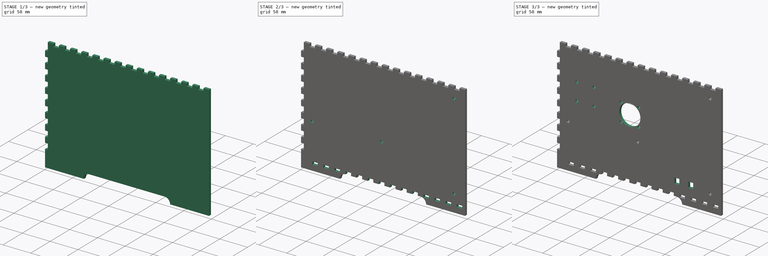
[diagram: build sequence overview — one tinted view per stage of 3, left to right]
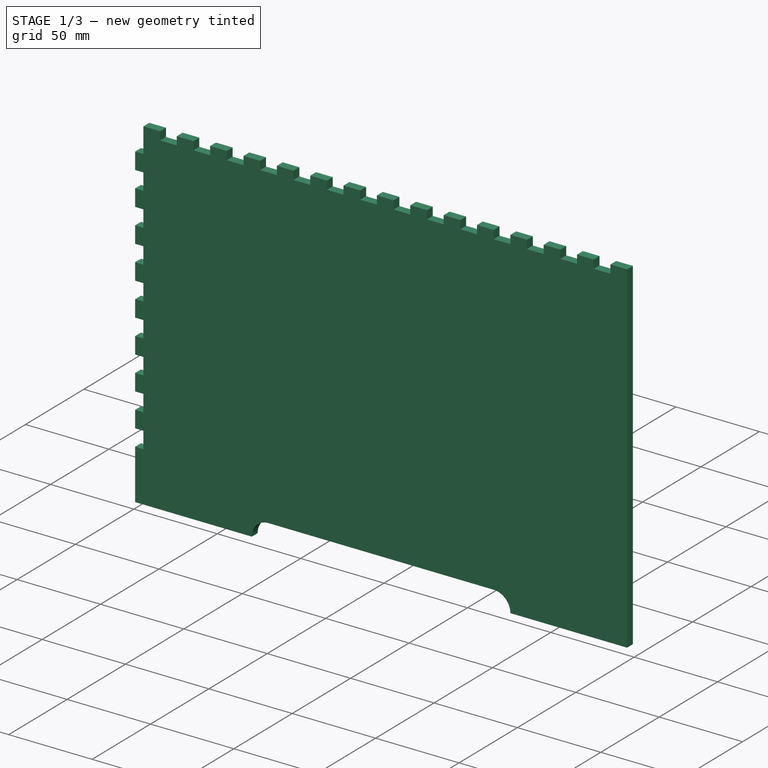
[diagram: stage 1 of 3 — iso view after this stage's code; geometry added in this stage tinted green]
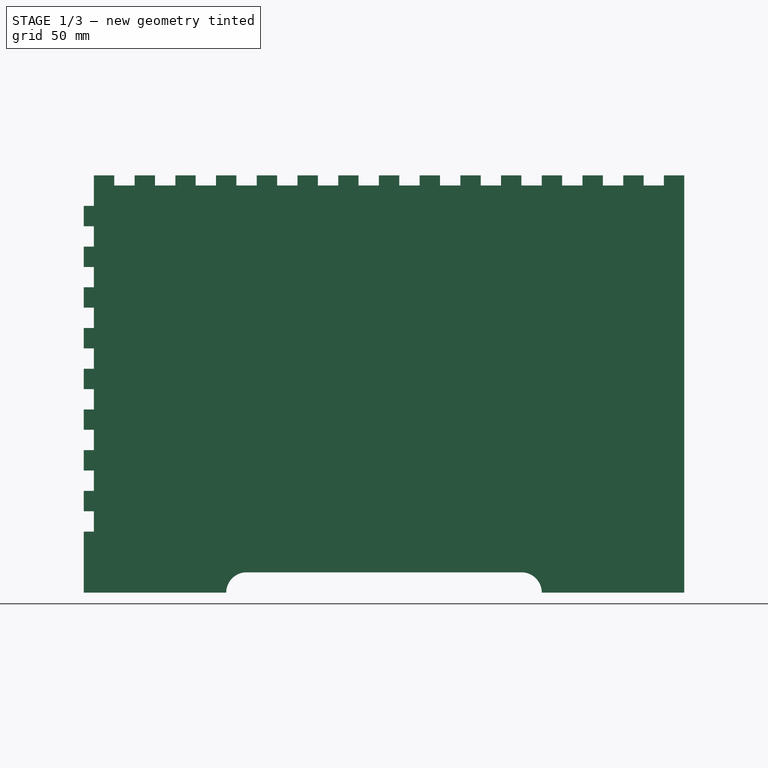
[diagram: stage 1 of 3 — front view after this stage's code; geometry added in this stage tinted green]
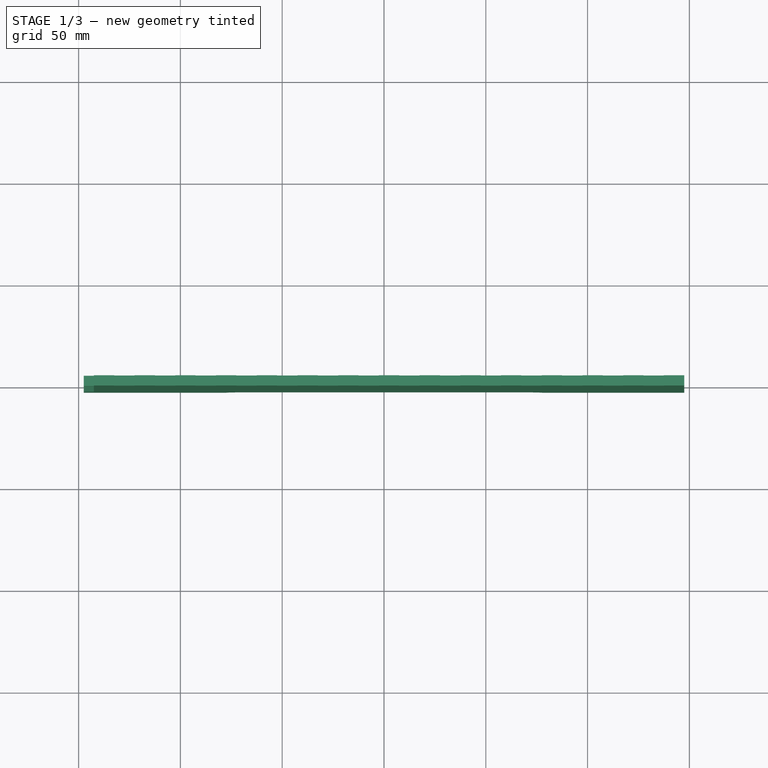
[diagram: stage 1 of 3 — top view after this stage's code; geometry added in this stage tinted green]
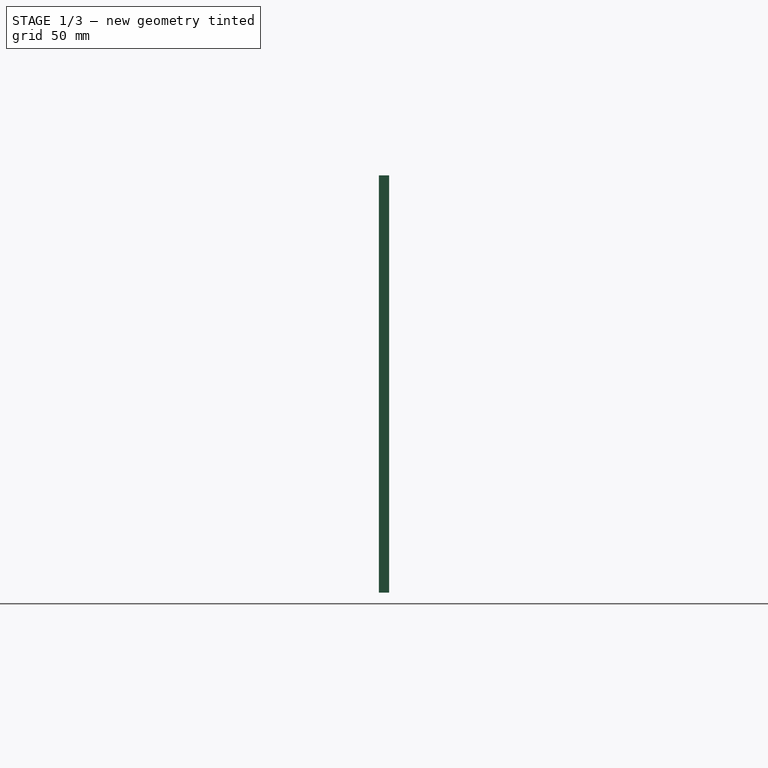
[diagram: stage 1 of 3 — right view after this stage's code; geometry added in this stage tinted green]
FCSTD DOCUMENT  (FreeCAD 0.19R24267 +148 (Git))
Label: STRUCT_Pl_AR
License: All rights reserved
LicenseURL: http://en.wikipedia.org/wiki/All_rights_reserved
objects: Sketcher::SketchObject×8, PartDesign::Pocket×6, PartDesign::Pad×2, PartDesign::Body×1
note: 25 computed .brp shape members not serialized (recipe doc carries the construction recipe); baked Part::Feature solids carry a one-line shape summary decoded from their .brp

FEATURE [Sketcher::SketchObject] Sketch
  FullyConstrained = true
  MapMode = 5
  Placement = pos=(0,0,0) rot=(1,0,0;1.5708rad)
  Support = -> [XZ_Plane]
  sketch-geometry (8):
    g0: LineSegment StartX=-147.5 StartY=-100 StartZ=0 EndX=-77.5 EndY=-100 EndZ=0
    g1: LineSegment StartX=147.5 StartY=-100 StartZ=0 EndX=147.5 EndY=100 EndZ=0
    g2: LineSegment StartX=147.5 StartY=100 StartZ=0 EndX=-147.5 EndY=100 EndZ=0
    g3: LineSegment StartX=-147.5 StartY=100 StartZ=0 EndX=-147.5 EndY=-100 EndZ=0
    g4: ArcOfCircle CenterX=-67.5 CenterY=-100 CenterZ=0 NormalX=0 NormalY=0 NormalZ=1 AngleXU=0 Radius=10 StartAngle=1.5708 EndAngle=3.14159
    g5: ArcOfCircle CenterX=67.5 CenterY=-100 CenterZ=0 NormalX=0 NormalY=0 NormalZ=1 AngleXU=0 Radius=10 StartAngle=-9e-16 EndAngle=1.5708
    g6: LineSegment StartX=-67.5 StartY=-90 StartZ=0 EndX=67.5 EndY=-90 EndZ=0
    g7: LineSegment StartX=77.5 StartY=-100 StartZ=0 EndX=147.5 EndY=-100 EndZ=0
  constraints (22):
    c: Coincident(g7,g1)
    c: Coincident(g1,g2)
    c: Coincident(g2,g3)
    c: Coincident(g3,g0)
    c: Horizontal(g0)
    c: Vertical(g3)
    c: Symmetric(g1,g2,g-2)
    c: Symmetric(g7,g1,g-1)
    c: PointOnObject(g4,g0)
    c: Radius(g4) = 10
    c: Distance(g1) = 200
    c: Distance(g2) = 295
    c: Equal(g5,g4)
    c: Vertical(g5,g5)
    c: Vertical(g4,g4)
    c: Symmetric(g5,g4,g-2)
    c: Coincident(g6,g4)
    c: Coincident(g6,g5)
    c: Coincident(g0,g4)
    c: Coincident(g7,g5)
    c: Tangent(g0,g7)
    c: Distance(g5,g1) = 80
FEATURE [PartDesign::Pad] Pad
  Direction = (1,1,1)
  Length = 5
  Length2 = 100
  Midplane = true
  Placement = pos=(0,0,0) rot=(1,0,0;1.5708rad)
  Profile = -> Sketch
  Refine = true
  Type = 0
FEATURE [Sketcher::SketchObject] Sketch001
  ExternalGeometry = -> [Pad]
  FullyConstrained = true
  MapMode = 5
  Placement = pos=(0,-2.5,1.1e-15) rot=(1,0,0;1.5708rad)
  Support = -> [Pad]
  sketch-geometry (49):
    g0: LineSegment StartX=-142.5 StartY=-60 StartZ=0 EndX=-147.5 EndY=-60 EndZ=0
    g1: LineSegment StartX=-147.5 StartY=-60 StartZ=0 EndX=-147.5 EndY=-70 EndZ=0
    g2: LineSegment StartX=-147.5 StartY=-70 StartZ=0 EndX=-142.5 EndY=-70 EndZ=0
    g3: LineSegment StartX=-142.5 StartY=-70 StartZ=0 EndX=-142.5 EndY=-60 EndZ=0
    g4: LineSegment StartX=-142.5 StartY=-40 StartZ=0 EndX=-147.5 EndY=-40 EndZ=0
    g5: LineSegment StartX=-147.5 StartY=-40 StartZ=0 EndX=-147.5 EndY=-50 EndZ=0
    g6: LineSegment StartX=-147.5 StartY=-50 StartZ=0 EndX=-142.5 EndY=-50 EndZ=0
    g7: LineSegment StartX=-142.5 StartY=-50 StartZ=0 EndX=-142.5 EndY=-40 EndZ=0
    g8: LineSegment StartX=-142.5 StartY=-60 StartZ=0 EndX=-142.5 EndY=-40 EndZ=0
    g9: LineSegment StartX=-142.5 StartY=-20 StartZ=0 EndX=-147.5 EndY=-20 EndZ=0
    g10: LineSegment StartX=-147.5 StartY=-20 StartZ=0 EndX=-147.5 EndY=-30 EndZ=0
    g11: LineSegment StartX=-147.5 StartY=-30 StartZ=0 EndX=-142.5 EndY=-30 EndZ=0
    g12: LineSegment StartX=-142.5 StartY=-30 StartZ=0 EndX=-142.5 EndY=-20 EndZ=0
    g13: LineSegment StartX=-142.5 StartY=-40 StartZ=0 EndX=-142.5 EndY=-20 EndZ=0
    g14: LineSegment StartX=-142.5 StartY=1.42e-14 StartZ=0 EndX=-147.5 EndY=1.42e-14 EndZ=0
    g15: LineSegment StartX=-147.5 StartY=1.42e-14 StartZ=0 EndX=-147.5 EndY=-10 EndZ=0
    g16: LineSegment StartX=-147.5 StartY=-10 StartZ=0 EndX=-142.5 EndY=-10 EndZ=0
    g17: LineSegment StartX=-142.5 StartY=-10 StartZ=0 EndX=-142.5 EndY=1.42e-14 EndZ=0
    g18: LineSegment StartX=-142.5 StartY=-20 StartZ=0 EndX=-142.5 EndY=1.42e-14 EndZ=0
    g19: LineSegment StartX=-142.5 StartY=20 StartZ=0 EndX=-147.5 EndY=20 EndZ=0
    g20: LineSegment StartX=-147.5 StartY=20 StartZ=0 EndX=-147.5 EndY=10 EndZ=0
    g21: LineSegment StartX=-147.5 StartY=10 StartZ=0 EndX=-142.5 EndY=10 EndZ=0
    g22: LineSegment StartX=-142.5 StartY=10 StartZ=0 EndX=-142.5 EndY=20 EndZ=0
    g23: LineSegment StartX=-142.5 StartY=1.42e-14 StartZ=0 EndX=-142.5 EndY=20 EndZ=0
    g24: LineSegment StartX=-142.5 StartY=40 StartZ=0 EndX=-147.5 EndY=40 EndZ=0
    g25: LineSegment StartX=-147.5 StartY=40 StartZ=0 EndX=-147.5 EndY=30 EndZ=0
    g26: LineSegment StartX=-147.5 StartY=30 StartZ=0 EndX=-142.5 EndY=30 EndZ=0
    g27: LineSegment StartX=-142.5 StartY=30 StartZ=0 EndX=-142.5 EndY=40 EndZ=0
    g28: LineSegment StartX=-142.5 StartY=20 StartZ=0 EndX=-142.5 EndY=40 EndZ=0
    g29: LineSegment StartX=-142.5 StartY=60 StartZ=0 EndX=-147.5 EndY=60 EndZ=0
    g30: LineSegment StartX=-147.5 StartY=60 StartZ=0 EndX=-147.5 EndY=50 EndZ=0
    g31: LineSegment StartX=-147.5 StartY=50 StartZ=0 EndX=-142.5 EndY=50 EndZ=0
    g32: LineSegment StartX=-142.5 StartY=50 StartZ=0 EndX=-142.5 EndY=60 EndZ=0
    g33: LineSegment StartX=-142.5 StartY=40 StartZ=0 EndX=-142.5 EndY=60 EndZ=0
    g34: LineSegment StartX=-142.5 StartY=80 StartZ=0 EndX=-147.5 EndY=80 EndZ=0
    g35: LineSegment StartX=-147.5 StartY=80 StartZ=0 EndX=-147.5 EndY=70 EndZ=0
    g36: LineSegment StartX=-147.5 StartY=70 StartZ=0 EndX=-142.5 EndY=70 EndZ=0
    g37: LineSegment StartX=-142.5 StartY=70 StartZ=0 EndX=-142.5 EndY=80 EndZ=0
    g38: LineSegment StartX=-142.5 StartY=60 StartZ=0 EndX=-142.5 EndY=80 EndZ=0
    g39: LineSegment StartX=-142.5 StartY=100 StartZ=0 EndX=-147.5 EndY=100 EndZ=0
    g40: LineSegment StartX=-147.5 StartY=100 StartZ=0 EndX=-147.5 EndY=90 EndZ=0
    g41: LineSegment StartX=-147.5 StartY=90 StartZ=0 EndX=-142.5 EndY=90 EndZ=0
    g42: LineSegment StartX=-142.5 StartY=90 StartZ=0 EndX=-142.5 EndY=100 EndZ=0
    g43: LineSegment StartX=-142.5 StartY=80 StartZ=0 EndX=-142.5 EndY=100 EndZ=0
    g44: LineSegment StartX=-142.5 StartY=120 StartZ=0 EndX=-147.5 EndY=120 EndZ=0
    g45: LineSegment StartX=-147.5 StartY=120 StartZ=0 EndX=-147.5 EndY=110 EndZ=0
    g46: LineSegment StartX=-147.5 StartY=110 StartZ=0 EndX=-142.5 EndY=110 EndZ=0
    g47: LineSegment StartX=-142.5 StartY=110 StartZ=0 EndX=-142.5 EndY=120 EndZ=0
    g48: LineSegment StartX=-142.5 StartY=100 StartZ=0 EndX=-142.5 EndY=120 EndZ=0
  constraints (138):
    c: Coincident(g0,g1)
    c: Coincident(g1,g2)
    c: Coincident(g2,g3)
    c: Coincident(g3,g0)
    c: Horizontal(g0)
    c: Horizontal(g2)
    c: Vertical(g1)
    c: Vertical(g3)
    c: Distance(g2) = 5
    c: Distance(g3) = 10
    c: DistanceY(g-3,g1) = 30
    c: PointOnObject(g0,g-3)
    c: Coincident(g4,g5)
    c: Coincident(g5,g6)
    c: Coincident(g6,g7)
    c: Coincident(g7,g4)
    c: Horizontal(g4)
    c: Horizontal(g6)
    c: Vertical(g5)
    c: Vertical(g7)
    c: Equal(g2,g6) = 5
    c: Equal(g3,g7) = 10
    c: Coincident(g0,g8)
    c: Coincident(g4,g8)
    c: Distance(g8) = 20
    c: Coincident(g9,g10)
    c: Coincident(g10,g11)
    c: Coincident(g11,g12)
    c: Coincident(g12,g9)
    c: Horizontal(g9)
    c: Horizontal(g11)
    c: Vertical(g10)
    c: Vertical(g12)
    c: Equal(g2,g11) = 5
    c: Equal(g3,g12) = 10
    c: Coincident(g4,g13)
    c: Coincident(g9,g13)
    c: Equal(g8,g13)
    c: Parallel(g13,g8)
    c: Coincident(g14,g15)
    c: Coincident(g15,g16)
    c: Coincident(g16,g17)
    c: Coincident(g17,g14)
    c: Horizontal(g14)
    c: Horizontal(g16)
    c: Vertical(g15)
    c: Vertical(g17)
    c: Equal(g2,g16) = 5
    c: Equal(g3,g17) = 10
    c: Coincident(g9,g18)
    c: Coincident(g14,g18)
    c: Equal(g8,g18)
    c: Parallel(g18,g8)
    c: Coincident(g19,g20)
    c: Coincident(g20,g21)
    c: Coincident(g21,g22)
    c: Coincident(g22,g19)
    c: Horizontal(g19)
    c: Horizontal(g21)
    c: Vertical(g20)
    c: Vertical(g22)
    c: Equal(g2,g21) = 5
    c: Equal(g3,g22) = 10
    c: Coincident(g14,g23)
    c: Coincident(g19,g23)
    c: Equal(g8,g23)
    c: Parallel(g23,g8)
    c: Coincident(g24,g25)
    c: Coincident(g25,g26)
    c: Coincident(g26,g27)
    c: Coincident(g27,g24)
    c: Horizontal(g24)
    c: Horizontal(g26)
    c: Vertical(g25)
    c: Vertical(g27)
    c: Equal(g2,g26) = 5
    c: Equal(g3,g27) = 10
    c: Coincident(g19,g28)
    c: Coincident(g24,g28)
    c: Equal(g8,g28)
    c: Parallel(g28,g8)
    c: Coincident(g29,g30)
    c: Coincident(g30,g31)
    c: Coincident(g31,g32)
    c: Coincident(g32,g29)
    c: Horizontal(g29)
    c: Horizontal(g31)
    c: Vertical(g30)
    c: Vertical(g32)
    c: Equal(g2,g31) = 5
    c: Equal(g3,g32) = 10
    c: Coincident(g24,g33)
    c: Coincident(g29,g33)
    c: Equal(g8,g33)
    c: Parallel(g33,g8)
    c: Coincident(g34,g35)
    c: Coincident(g35,g36)
    c: Coincident(g36,g37)
    c: Coincident(g37,g34)
    c: Horizontal(g34)
    c: Horizontal(g36)
    c: Vertical(g35)
    c: Vertical(g37)
    c: Equal(g2,g36) = 5
    c: Equal(g3,g37) = 10
    c: Coincident(g29,g38)
    c: Coincident(g34,g38)
    c: Equal(g8,g38)
    c: Parallel(g38,g8)
    c: Coincident(g39,g40)
    c: Coincident(g40,g41)
    c: Coincident(g41,g42)
    c: Coincident(g42,g39)
    c: Horizontal(g39)
    c: Horizontal(g41)
    c: Vertical(g40)
    c: Vertical(g42)
    c: Equal(g2,g41) = 5
    c: Equal(g3,g42) = 10
    c: Coincident(g34,g43)
    c: Coincident(g39,g43)
    c: Equal(g8,g43)
    c: Parallel(g43,g8)
    c: Coincident(g44,g45)
    c: Coincident(g45,g46)
    c: Coincident(g46,g47)
    c: Coincident(g47,g44)
    c: Horizontal(g44)
    c: Horizontal(g46)
    c: Vertical(g45)
    c: Vertical(g47)
    c: Equal(g2,g46) = 5
    c: Equal(g3,g47) = 10
    c: Coincident(g39,g48)
    c: Coincident(g44,g48)
    c: Equal(g8,g48)
    c: Parallel(g48,g8)
    c: Vertical(g8)
FEATURE [PartDesign::Pocket] Pocket  label="RightCrenel"
  BaseFeature = -> Pad
  Length = 5
  Length2 = 100
  Placement = pos=(0,0,0) rot=(1,0,0;1.5708rad)
  Profile = -> Sketch001
  Refine = true
  Type = 1
FEATURE [Sketcher::SketchObject] Sketch002
  ExternalGeometry = -> [Pocket]
  FullyConstrained = true
  MapMode = 5
  Placement = pos=(0,2.5,-1.1e-15) rot=(-1,0,0;1.5708rad)
  Support = -> [Pocket]
  sketch-geometry (74):
    g0: LineSegment StartX=147.5 StartY=-100 StartZ=0 EndX=137.5 EndY=-100 EndZ=0
    g1: LineSegment StartX=137.5 StartY=-100 StartZ=0 EndX=137.5 EndY=-105 EndZ=0
    g2: LineSegment StartX=137.5 StartY=-105 StartZ=0 EndX=147.5 EndY=-105 EndZ=0
    g3: LineSegment StartX=147.5 StartY=-105 StartZ=0 EndX=147.5 EndY=-100 EndZ=0
    g4: LineSegment StartX=127.5 StartY=-100 StartZ=0 EndX=117.5 EndY=-100 EndZ=0
    g5: LineSegment StartX=117.5 StartY=-100 StartZ=0 EndX=117.5 EndY=-105 EndZ=0
    g6: LineSegment StartX=117.5 StartY=-105 StartZ=0 EndX=127.5 EndY=-105 EndZ=0
    g7: LineSegment StartX=127.5 StartY=-105 StartZ=0 EndX=127.5 EndY=-100 EndZ=0
    g8: LineSegment StartX=147.5 StartY=-100 StartZ=0 EndX=127.5 EndY=-100 EndZ=0
    g9: LineSegment StartX=107.5 StartY=-100 StartZ=0 EndX=97.5 EndY=-100 EndZ=0
    g10: LineSegment StartX=97.5 StartY=-100 StartZ=0 EndX=97.5 EndY=-105 EndZ=0
    g11: LineSegment StartX=97.5 StartY=-105 StartZ=0 EndX=107.5 EndY=-105 EndZ=0
    g12: LineSegment StartX=107.5 StartY=-105 StartZ=0 EndX=107.5 EndY=-100 EndZ=0
    g13: LineSegment StartX=127.5 StartY=-100 StartZ=0 EndX=107.5 EndY=-100 EndZ=0
    g14: LineSegment StartX=87.5 StartY=-100 StartZ=0 EndX=77.5 EndY=-100 EndZ=0
    g15: LineSegment StartX=77.5 StartY=-100 StartZ=0 EndX=77.5 EndY=-105 EndZ=0
    g16: LineSegment StartX=77.5 StartY=-105 StartZ=0 EndX=87.5 EndY=-105 EndZ=0
    g17: LineSegment StartX=87.5 StartY=-105 StartZ=0 EndX=87.5 EndY=-100 EndZ=0
    g18: LineSegment StartX=107.5 StartY=-100 StartZ=0 EndX=87.5 EndY=-100 EndZ=0
    g19: LineSegment StartX=67.5 StartY=-100 StartZ=0 EndX=57.5 EndY=-100 EndZ=0
    g20: LineSegment StartX=57.5 StartY=-100 StartZ=0 EndX=57.5 EndY=-105 EndZ=0
    g21: LineSegment StartX=57.5 StartY=-105 StartZ=0 EndX=67.5 EndY=-105 EndZ=0
    g22: LineSegment StartX=67.5 StartY=-105 StartZ=0 EndX=67.5 EndY=-100 EndZ=0
    g23: LineSegment StartX=87.5 StartY=-100 StartZ=0 EndX=67.5 EndY=-100 EndZ=0
    g24: LineSegment StartX=47.5 StartY=-100 StartZ=0 EndX=37.5 EndY=-100 EndZ=0
    g25: LineSegment StartX=37.5 StartY=-100 StartZ=0 EndX=37.5 EndY=-105 EndZ=0
    g26: LineSegment StartX=37.5 StartY=-105 StartZ=0 EndX=47.5 EndY=-105 EndZ=0
    g27: LineSegment StartX=47.5 StartY=-105 StartZ=0 EndX=47.5 EndY=-100 EndZ=0
    g28: LineSegment StartX=67.5 StartY=-100 StartZ=0 EndX=47.5 EndY=-100 EndZ=0
    g29: LineSegment StartX=27.5 StartY=-100 StartZ=0 EndX=17.5 EndY=-100 EndZ=0
    g30: LineSegment StartX=17.5 StartY=-100 StartZ=0 EndX=17.5 EndY=-105 EndZ=0
    g31: LineSegment StartX=17.5 StartY=-105 StartZ=0 EndX=27.5 EndY=-105 EndZ=0
    g32: LineSegment StartX=27.5 StartY=-105 StartZ=0 EndX=27.5 EndY=-100 EndZ=0
    g33: LineSegment StartX=47.5 StartY=-100 StartZ=0 EndX=27.5 EndY=-100 EndZ=0
    g34: LineSegment StartX=7.5 StartY=-100 StartZ=0 EndX=-2.5 EndY=-100 EndZ=0
    g35: LineSegment StartX=-2.5 StartY=-100 StartZ=0 EndX=-2.5 EndY=-105 EndZ=0
    g36: LineSegment StartX=-2.5 StartY=-105 StartZ=0 EndX=7.5 EndY=-105 EndZ=0
    g37: LineSegment StartX=7.5 StartY=-105 StartZ=0 EndX=7.5 EndY=-100 EndZ=0
    g38: LineSegment StartX=27.5 StartY=-100 StartZ=0 EndX=7.5 EndY=-100 EndZ=0
    g39: LineSegment StartX=-12.5 StartY=-100 StartZ=0 EndX=-22.5 EndY=-100 EndZ=0
    g40: LineSegment StartX=-22.5 StartY=-100 StartZ=0 EndX=-22.5 EndY=-105 EndZ=0
    g41: LineSegment StartX=-22.5 StartY=-105 StartZ=0 EndX=-12.5 EndY=-105 EndZ=0
    g42: LineSegment StartX=-12.5 StartY=-105 StartZ=0 EndX=-12.5 EndY=-100 EndZ=0
    g43: LineSegment StartX=7.5 StartY=-100 StartZ=0 EndX=-12.5 EndY=-100 EndZ=0
    g44: LineSegment StartX=-32.5 StartY=-100 StartZ=0 EndX=-42.5 EndY=-100 EndZ=0
    g45: LineSegment StartX=-42.5 StartY=-100 StartZ=0 EndX=-42.5 EndY=-105 EndZ=0
    g46: LineSegment StartX=-42.5 StartY=-105 StartZ=0 EndX=-32.5 EndY=-105 EndZ=0
    g47: LineSegment StartX=-32.5 StartY=-105 StartZ=0 EndX=-32.5 EndY=-100 EndZ=0
    g48: LineSegment StartX=-12.5 StartY=-100 StartZ=0 EndX=-32.5 EndY=-100 EndZ=0
    g49: LineSegment StartX=-52.5 StartY=-100 StartZ=0 EndX=-62.5 EndY=-100 EndZ=0
    g50: LineSegment StartX=-62.5 StartY=-100 StartZ=0 EndX=-62.5 EndY=-105 EndZ=0
    g51: LineSegment StartX=-62.5 StartY=-105 StartZ=0 EndX=-52.5 EndY=-105 EndZ=0
    g52: LineSegment StartX=-52.5 StartY=-105 StartZ=0 EndX=-52.5 EndY=-100 EndZ=0
    g53: LineSegment StartX=-32.5 StartY=-100 StartZ=0 EndX=-52.5 EndY=-100 EndZ=0
    g54: LineSegment StartX=-72.5 StartY=-100 StartZ=0 EndX=-82.5 EndY=-100 EndZ=0
    g55: LineSegment StartX=-82.5 StartY=-100 StartZ=0 EndX=-82.5 EndY=-105 EndZ=0
    g56: LineSegment StartX=-82.5 StartY=-105 StartZ=0 EndX=-72.5 EndY=-105 EndZ=0
    g57: LineSegment StartX=-72.5 StartY=-105 StartZ=0 EndX=-72.5 EndY=-100 EndZ=0
    g58: LineSegment StartX=-52.5 StartY=-100 StartZ=0 EndX=-72.5 EndY=-100 EndZ=0
    g59: LineSegment StartX=-92.5 StartY=-100 StartZ=0 EndX=-102.5 EndY=-100 EndZ=0
    g60: LineSegment StartX=-102.5 StartY=-100 StartZ=0 EndX=-102.5 EndY=-105 EndZ=0
    g61: LineSegment StartX=-102.5 StartY=-105 StartZ=0 EndX=-92.5 EndY=-105 EndZ=0
    g62: LineSegment StartX=-92.5 StartY=-105 StartZ=0 EndX=-92.5 EndY=-100 EndZ=0
    g63: LineSegment StartX=-72.5 StartY=-100 StartZ=0 EndX=-92.5 EndY=-100 EndZ=0
    g64: LineSegment StartX=-112.5 StartY=-100 StartZ=0 EndX=-122.5 EndY=-100 EndZ=0
    g65: LineSegment StartX=-122.5 StartY=-100 StartZ=0 EndX=-122.5 EndY=-105 EndZ=0
    g66: LineSegment StartX=-122.5 StartY=-105 StartZ=0 EndX=-112.5 EndY=-105 EndZ=0
    g67: LineSegment StartX=-112.5 StartY=-105 StartZ=0 EndX=-112.5 EndY=-100 EndZ=0
    g68: LineSegment StartX=-92.5 StartY=-100 StartZ=0 EndX=-112.5 EndY=-100 EndZ=0
    g69: LineSegment StartX=-132.5 StartY=-100 StartZ=0 EndX=-142.5 EndY=-100 EndZ=0
    g70: LineSegment StartX=-142.5 StartY=-100 StartZ=0 EndX=-142.5 EndY=-105 EndZ=0
    g71: LineSegment StartX=-142.5 StartY=-105 StartZ=0 EndX=-132.5 EndY=-105 EndZ=0
    g72: LineSegment StartX=-132.5 StartY=-105 StartZ=0 EndX=-132.5 EndY=-100 EndZ=0
    g73: LineSegment StartX=-112.5 StartY=-100 StartZ=0 EndX=-132.5 EndY=-100 EndZ=0
  constraints (207):
    c: Coincident(g0,g1)
    c: Coincident(g1,g2)
    c: Coincident(g2,g3)
    c: Coincident(g3,g0)
    c: Horizontal(g0)
    c: Horizontal(g2)
    c: Vertical(g1)
    c: Vertical(g3)
    c: Coincident(g0,g-3)
    c: Distance(g3) = 5
    c: Distance(g0) = 10
    c: Coincident(g4,g5)
    c: Coincident(g5,g6)
    c: Coincident(g6,g7)
    c: Coincident(g7,g4)
    c: Horizontal(g4)
    c: Horizontal(g6)
    c: Vertical(g5)
    c: Vertical(g7)
    c: Equal(g3,g7) = 5
    c: Equal(g0,g4) = 10
    c: Coincident(g0,g8)
    c: Coincident(g4,g8)
    c: Distance(g8) = 20
    c: Coincident(g9,g10)
    c: Coincident(g10,g11)
    c: Coincident(g11,g12)
    c: Coincident(g12,g9)
    c: Horizontal(g9)
    c: Horizontal(g11)
    c: Vertical(g10)
    c: Vertical(g12)
    c: Equal(g3,g12) = 5
    c: Equal(g0,g9) = 10
    c: Coincident(g4,g13)
    c: Coincident(g9,g13)
    c: Equal(g8,g13)
    c: Parallel(g13,g8)
    c: Coincident(g14,g15)
    c: Coincident(g15,g16)
    c: Coincident(g16,g17)
    c: Coincident(g17,g14)
    c: Horizontal(g14)
    c: Horizontal(g16)
    c: Vertical(g15)
    c: Vertical(g17)
    c: Equal(g3,g17) = 5
    c: Equal(g0,g14) = 10
    c: Coincident(g9,g18)
    c: Coincident(g14,g18)
    c: Equal(g8,g18)
    c: Parallel(g18,g8)
    c: Coincident(g19,g20)
    c: Coincident(g20,g21)
    c: Coincident(g21,g22)
    c: Coincident(g22,g19)
    c: Horizontal(g19)
    c: Horizontal(g21)
    c: Vertical(g20)
    c: Vertical(g22)
    c: Equal(g3,g22) = 5
    c: Equal(g0,g19) = 10
    c: Coincident(g14,g23)
    c: Coincident(g19,g23)
    c: Equal(g8,g23)
    c: Parallel(g23,g8)
    c: Coincident(g24,g25)
    c: Coincident(g25,g26)
    c: Coincident(g26,g27)
    c: Coincident(g27,g24)
    c: Horizontal(g24)
    c: Horizontal(g26)
    c: Vertical(g25)
    c: Vertical(g27)
    c: Equal(g3,g27) = 5
    c: Equal(g0,g24) = 10
    c: Coincident(g19,g28)
    c: Coincident(g24,g28)
    c: Equal(g8,g28)
    c: Parallel(g28,g8)
    c: Coincident(g29,g30)
    c: Coincident(g30,g31)
    c: Coincident(g31,g32)
    c: Coincident(g32,g29)
    c: Horizontal(g29)
    c: Horizontal(g31)
    c: Vertical(g30)
    c: Vertical(g32)
    c: Equal(g3,g32) = 5
    c: Equal(g0,g29) = 10
    c: Coincident(g24,g33)
    c: Coincident(g29,g33)
    c: Equal(g8,g33)
    c: Parallel(g33,g8)
    c: Coincident(g34,g35)
    c: Coincident(g35,g36)
    c: Coincident(g36,g37)
    c: Coincident(g37,g34)
    c: Horizontal(g34)
    c: Horizontal(g36)
    c: Vertical(g35)
    c: Vertical(g37)
    c: Equal(g3,g37) = 5
    c: Equal(g0,g34) = 10
    c: Coincident(g29,g38)
    c: Coincident(g34,g38)
    c: Equal(g8,g38)
    c: Parallel(g38,g8)
    c: Coincident(g39,g40)
    c: Coincident(g40,g41)
    c: Coincident(g41,g42)
    c: Coincident(g42,g39)
    c: Horizontal(g39)
    c: Horizontal(g41)
    c: Vertical(g40)
    c: Vertical(g42)
    c: Equal(g3,g42) = 5
    c: Equal(g0,g39) = 10
    c: Coincident(g34,g43)
    c: Coincident(g39,g43)
    c: Equal(g8,g43)
    c: Parallel(g43,g8)
    c: Coincident(g44,g45)
    c: Coincident(g45,g46)
    c: Coincident(g46,g47)
    c: Coincident(g47,g44)
    c: Horizontal(g44)
    c: Horizontal(g46)
    c: Vertical(g45)
    c: Vertical(g47)
    c: Equal(g3,g47) = 5
    c: Equal(g0,g44) = 10
    c: Coincident(g39,g48)
    c: Coincident(g44,g48)
    c: Equal(g8,g48)
    c: Parallel(g48,g8)
    c: Coincident(g49,g50)
    c: Coincident(g50,g51)
    c: Coincident(g51,g52)
    c: Coincident(g52,g49)
    c: Horizontal(g49)
    c: Horizontal(g51)
    c: Vertical(g50)
    c: Vertical(g52)
    c: Equal(g3,g52) = 5
    c: Equal(g0,g49) = 10
    c: Coincident(g44,g53)
    c: Coincident(g49,g53)
    c: Equal(g8,g53)
    c: Parallel(g53,g8)
    c: Coincident(g54,g55)
    c: Coincident(g55,g56)
    c: Coincident(g56,g57)
    c: Coincident(g57,g54)
    c: Horizontal(g54)
    c: Horizontal(g56)
    c: Vertical(g55)
    c: Vertical(g57)
    c: Equal(g3,g57) = 5
    c: Equal(g0,g54) = 10
    c: Coincident(g49,g58)
    c: Coincident(g54,g58)
    c: Equal(g8,g58)
    c: Parallel(g58,g8)
    c: Coincident(g59,g60)
    c: Coincident(g60,g61)
    c: Coincident(g61,g62)
    c: Coincident(g62,g59)
    c: Horizontal(g59)
    c: Horizontal(g61)
    c: Vertical(g60)
    c: Vertical(g62)
    c: Equal(g3,g62) = 5
    c: Equal(g0,g59) = 10
    c: Coincident(g54,g63)
    c: Coincident(g59,g63)
    c: Equal(g8,g63)
    c: Parallel(g63,g8)
    c: Coincident(g64,g65)
    c: Coincident(g65,g66)
    c: Coincident(g66,g67)
    c: Coincident(g67,g64)
    c: Horizontal(g64)
    c: Horizontal(g66)
    c: Vertical(g65)
    c: Vertical(g67)
    c: Equal(g3,g67) = 5
    c: Equal(g0,g64) = 10
    c: Coincident(g59,g68)
    c: Coincident(g64,g68)
    c: Equal(g8,g68)
    c: Parallel(g68,g8)
    c: Coincident(g69,g70)
    c: Coincident(g70,g71)
    c: Coincident(g71,g72)
    c: Coincident(g72,g69)
    c: Horizontal(g69)
    c: Horizontal(g71)
    c: Vertical(g70)
    c: Vertical(g72)
    c: Equal(g3,g72) = 5
    c: Equal(g0,g69) = 10
    c: Coincident(g64,g73)
    c: Coincident(g69,g73)
    c: Equal(g8,g73)
    c: Parallel(g73,g8)
    c: Horizontal(g8)
FEATURE [PartDesign::Pad] Pad001  label="UpperCrenel"
  BaseFeature = -> Pocket
  Direction = (1,1,1)
  Length = 10
  Length2 = 100
  Placement = pos=(0,0,0) rot=(1,0,0;1.5708rad)
  Profile = -> Sketch002
  Refine = true
  Type = 3
  UpToFace = -> Pocket [Face5]
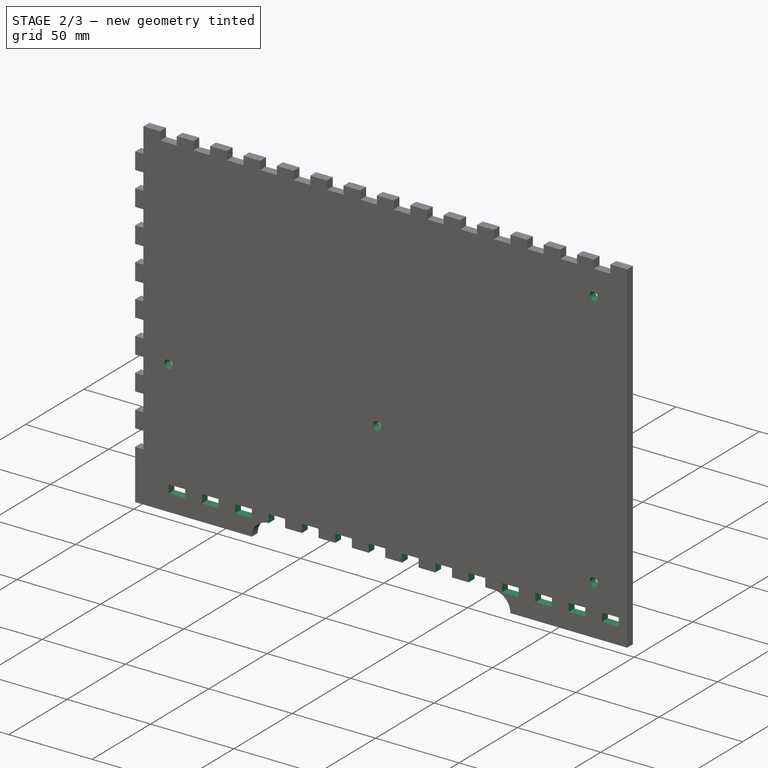
[diagram: stage 2 of 3 — iso view after this stage's code; geometry added in this stage tinted green]
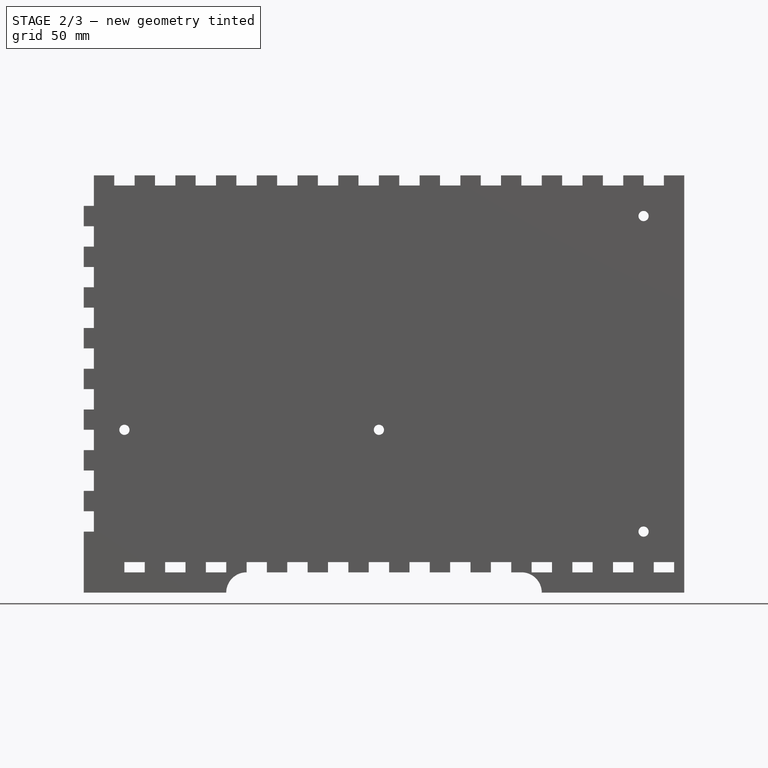
[diagram: stage 2 of 3 — front view after this stage's code; geometry added in this stage tinted green]
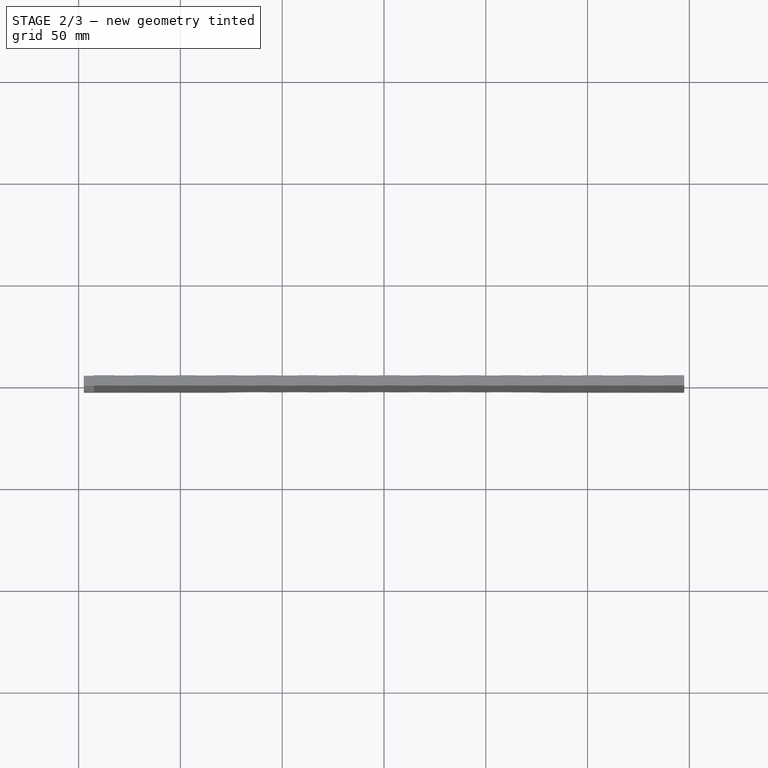
[diagram: stage 2 of 3 — top view after this stage's code; geometry added in this stage tinted green]
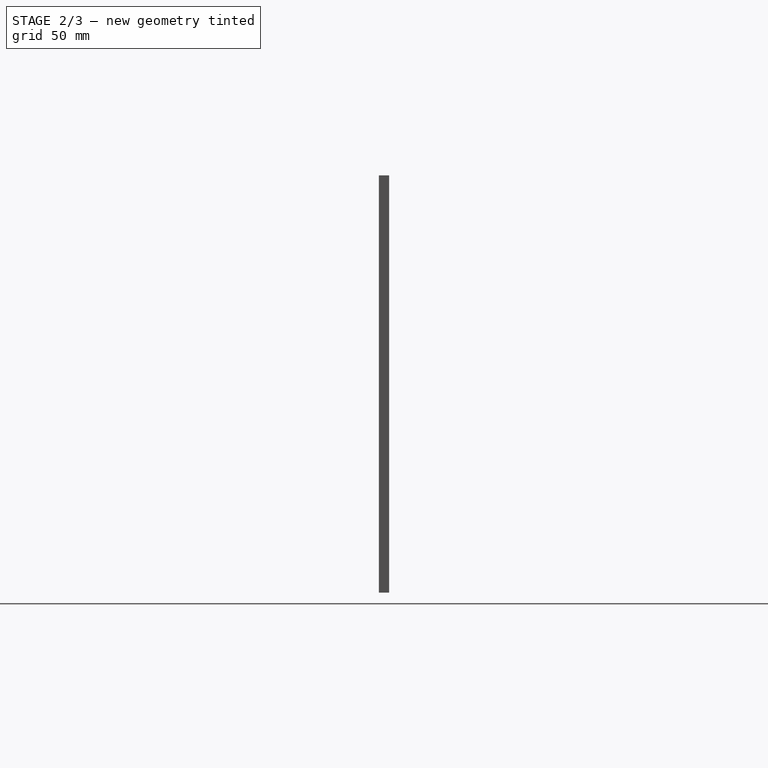
[diagram: stage 2 of 3 — right view after this stage's code; geometry added in this stage tinted green]
FEATURE [Sketcher::SketchObject] Sketch003
  ExternalGeometry = -> [Pad001]
  FullyConstrained = true
  MapMode = 5
  Placement = pos=(0,2.5,-3.9e-15) rot=(-1,0,0;1.5708rad)
  Support = -> [Pad001]
  sketch-geometry (69):
    g0: LineSegment StartX=-127.5 StartY=85 StartZ=0 EndX=-117.5 EndY=85 EndZ=0
    g1: LineSegment StartX=-117.5 StartY=85 StartZ=0 EndX=-117.5 EndY=90 EndZ=0
    g2: LineSegment StartX=-117.5 StartY=90 StartZ=0 EndX=-127.5 EndY=90 EndZ=0
    g3: LineSegment StartX=-127.5 StartY=90 StartZ=0 EndX=-127.5 EndY=85 EndZ=0
    g4: LineSegment StartX=-107.5 StartY=85 StartZ=0 EndX=-97.5 EndY=85 EndZ=0
    g5: LineSegment StartX=-97.5 StartY=85 StartZ=0 EndX=-97.5 EndY=90 EndZ=0
    g6: LineSegment StartX=-97.5 StartY=90 StartZ=0 EndX=-107.5 EndY=90 EndZ=0
    g7: LineSegment StartX=-107.5 StartY=90 StartZ=0 EndX=-107.5 EndY=85 EndZ=0
    g8: LineSegment StartX=-127.5 StartY=85 StartZ=0 EndX=-107.5 EndY=85 EndZ=0
    g9: LineSegment StartX=-87.5 StartY=85 StartZ=0 EndX=-77.5 EndY=85 EndZ=0
    g10: LineSegment StartX=-77.5 StartY=85 StartZ=0 EndX=-77.5 EndY=90 EndZ=0
    g11: LineSegment StartX=-77.5 StartY=90 StartZ=0 EndX=-87.5 EndY=90 EndZ=0
    g12: LineSegment StartX=-87.5 StartY=90 StartZ=0 EndX=-87.5 EndY=85 EndZ=0
    g13: LineSegment StartX=-107.5 StartY=85 StartZ=0 EndX=-87.5 EndY=85 EndZ=0
    g14: LineSegment StartX=-67.5 StartY=85 StartZ=0 EndX=-57.5 EndY=85 EndZ=0
    g15: LineSegment StartX=-57.5 StartY=85 StartZ=0 EndX=-57.5 EndY=90 EndZ=0
    g16: LineSegment StartX=-57.5 StartY=90 StartZ=0 EndX=-67.5 EndY=90 EndZ=0
    g17: LineSegment StartX=-67.5 StartY=90 StartZ=0 EndX=-67.5 EndY=85 EndZ=0
    g18: LineSegment StartX=-87.5 StartY=85 StartZ=0 EndX=-67.5 EndY=85 EndZ=0
    g19: LineSegment StartX=-47.5 StartY=85 StartZ=0 EndX=-37.5 EndY=85 EndZ=0
    g20: LineSegment StartX=-37.5 StartY=85 StartZ=0 EndX=-37.5 EndY=90 EndZ=0
    g21: LineSegment StartX=-37.5 StartY=90 StartZ=0 EndX=-47.5 EndY=90 EndZ=0
    g22: LineSegment StartX=-47.5 StartY=90 StartZ=0 EndX=-47.5 EndY=85 EndZ=0
    g23: LineSegment StartX=-67.5 StartY=85 StartZ=0 EndX=-47.5 EndY=85 EndZ=0
    g24: LineSegment StartX=-27.5 StartY=85 StartZ=0 EndX=-17.5 EndY=85 EndZ=0
    g25: LineSegment StartX=-17.5 StartY=85 StartZ=0 EndX=-17.5 EndY=90 EndZ=0
    g26: LineSegment StartX=-17.5 StartY=90 StartZ=0 EndX=-27.5 EndY=90 EndZ=0
    g27: LineSegment StartX=-27.5 StartY=90 StartZ=0 EndX=-27.5 EndY=85 EndZ=0
    g28: LineSegment StartX=-47.5 StartY=85 StartZ=0 EndX=-27.5 EndY=85 EndZ=0
    g29: LineSegment StartX=-7.5 StartY=85 StartZ=0 EndX=2.5 EndY=85 EndZ=0
    g30: LineSegment StartX=2.5 StartY=85 StartZ=0 EndX=2.5 EndY=90 EndZ=0
    g31: LineSegment StartX=2.5 StartY=90 StartZ=0 EndX=-7.5 EndY=90 EndZ=0
    g32: LineSegment StartX=-7.5 StartY=90 StartZ=0 EndX=-7.5 EndY=85 EndZ=0
    g33: LineSegment StartX=-27.5 StartY=85 StartZ=0 EndX=-7.5 EndY=85 EndZ=0
    g34: LineSegment StartX=12.5 StartY=85 StartZ=0 EndX=22.5 EndY=85 EndZ=0
    g35: LineSegment StartX=22.5 StartY=85 StartZ=0 EndX=22.5 EndY=90 EndZ=0
    g36: LineSegment StartX=22.5 StartY=90 StartZ=0 EndX=12.5 EndY=90 EndZ=0
    g37: LineSegment StartX=12.5 StartY=90 StartZ=0 EndX=12.5 EndY=85 EndZ=0
    g38: LineSegment StartX=-7.5 StartY=85 StartZ=0 EndX=12.5 EndY=85 EndZ=0
    g39: LineSegment StartX=32.5 StartY=85 StartZ=0 EndX=42.5 EndY=85 EndZ=0
    g40: LineSegment StartX=42.5 StartY=85 StartZ=0 EndX=42.5 EndY=90 EndZ=0
    g41: LineSegment StartX=42.5 StartY=90 StartZ=0 EndX=32.5 EndY=90 EndZ=0
    g42: LineSegment StartX=32.5 StartY=90 StartZ=0 EndX=32.5 EndY=85 EndZ=0
    g43: LineSegment StartX=12.5 StartY=85 StartZ=0 EndX=32.5 EndY=85 EndZ=0
    g44: LineSegment StartX=52.5 StartY=85 StartZ=0 EndX=62.5 EndY=85 EndZ=0
    g45: LineSegment StartX=62.5 StartY=85 StartZ=0 EndX=62.5 EndY=90 EndZ=0
    g46: LineSegment StartX=62.5 StartY=90 StartZ=0 EndX=52.5 EndY=90 EndZ=0
    g47: LineSegment StartX=52.5 StartY=90 StartZ=0 EndX=52.5 EndY=85 EndZ=0
    g48: LineSegment StartX=32.5 StartY=85 StartZ=0 EndX=52.5 EndY=85 EndZ=0
    g49: LineSegment StartX=72.5 StartY=85 StartZ=0 EndX=82.5 EndY=85 EndZ=0
    g50: LineSegment StartX=82.5 StartY=85 StartZ=0 EndX=82.5 EndY=90 EndZ=0
    g51: LineSegment StartX=82.5 StartY=90 StartZ=0 EndX=72.5 EndY=90 EndZ=0
    g52: LineSegment StartX=72.5 StartY=90 StartZ=0 EndX=72.5 EndY=85 EndZ=0
    g53: LineSegment StartX=52.5 StartY=85 StartZ=0 EndX=72.5 EndY=85 EndZ=0
    g54: LineSegment StartX=92.5 StartY=85 StartZ=0 EndX=102.5 EndY=85 EndZ=0
    g55: LineSegment StartX=102.5 StartY=85 StartZ=0 EndX=102.5 EndY=90 EndZ=0
    g56: LineSegment StartX=102.5 StartY=90 StartZ=0 EndX=92.5 EndY=90 EndZ=0
    g57: LineSegment StartX=92.5 StartY=90 StartZ=0 EndX=92.5 EndY=85 EndZ=0
    g58: LineSegment StartX=72.5 StartY=85 StartZ=0 EndX=92.5 EndY=85 EndZ=0
    g59: LineSegment StartX=112.5 StartY=85 StartZ=0 EndX=122.5 EndY=85 EndZ=0
    g60: LineSegment StartX=122.5 StartY=85 StartZ=0 EndX=122.5 EndY=90 EndZ=0
    g61: LineSegment StartX=122.5 StartY=90 StartZ=0 EndX=112.5 EndY=90 EndZ=0
    g62: LineSegment StartX=112.5 StartY=90 StartZ=0 EndX=112.5 EndY=85 EndZ=0
    g63: LineSegment StartX=92.5 StartY=85 StartZ=0 EndX=112.5 EndY=85 EndZ=0
    g64: LineSegment StartX=132.5 StartY=85 StartZ=0 EndX=142.5 EndY=85 EndZ=0
    g65: LineSegment StartX=142.5 StartY=85 StartZ=0 EndX=142.5 EndY=90 EndZ=0
    g66: LineSegment StartX=142.5 StartY=90 StartZ=0 EndX=132.5 EndY=90 EndZ=0
    g67: LineSegment StartX=132.5 StartY=90 StartZ=0 EndX=132.5 EndY=85 EndZ=0
    g68: LineSegment StartX=112.5 StartY=85 StartZ=0 EndX=132.5 EndY=85 EndZ=0
  constraints (194):
    c: Coincident(g0,g1)
    c: Coincident(g1,g2)
    c: Coincident(g2,g3)
    c: Coincident(g3,g0)
    c: Horizontal(g0)
    c: Horizontal(g2)
    c: Vertical(g1)
    c: Vertical(g3)
    c: Distance(g2) = 10
    c: Distance(g3) = 5
    c: DistanceX(g-3,g2) = 20
    c: DistanceY(g2,g-3) = 10
    c: Coincident(g4,g5)
    c: Coincident(g5,g6)
    c: Coincident(g6,g7)
    c: Coincident(g7,g4)
    c: Horizontal(g4)
    c: Horizontal(g6)
    c: Vertical(g5)
    c: Vertical(g7)
    c: Equal(g2,g6) = 10
    c: Equal(g3,g7) = 5
    c: Coincident(g0,g8)
    c: Coincident(g4,g8)
    c: Distance(g8) = 20
    c: Coincident(g9,g10)
    c: Coincident(g10,g11)
    c: Coincident(g11,g12)
    c: Coincident(g12,g9)
    c: Horizontal(g9)
    c: Horizontal(g11)
    c: Vertical(g10)
    c: Vertical(g12)
    c: Equal(g2,g11) = 10
    c: Equal(g3,g12) = 5
    c: Coincident(g4,g13)
    c: Coincident(g9,g13)
    c: Equal(g8,g13)
    c: Parallel(g13,g8)
    c: Coincident(g14,g15)
    c: Coincident(g15,g16)
    c: Coincident(g16,g17)
    c: Coincident(g17,g14)
    c: Horizontal(g14)
    c: Horizontal(g16)
    c: Vertical(g15)
    c: Vertical(g17)
    c: Equal(g2,g16) = 10
    c: Equal(g3,g17) = 5
    c: Coincident(g9,g18)
    c: Coincident(g14,g18)
    c: Equal(g8,g18)
    c: Parallel(g18,g8)
    c: Coincident(g19,g20)
    c: Coincident(g20,g21)
    c: Coincident(g21,g22)
    c: Coincident(g22,g19)
    c: Horizontal(g19)
    c: Horizontal(g21)
    c: Vertical(g20)
    c: Vertical(g22)
    c: Equal(g2,g21) = 10
    c: Equal(g3,g22) = 5
    c: Coincident(g14,g23)
    c: Coincident(g19,g23)
    c: Equal(g8,g23)
    c: Parallel(g23,g8)
    c: Coincident(g24,g25)
    c: Coincident(g25,g26)
    c: Coincident(g26,g27)
    c: Coincident(g27,g24)
    c: Horizontal(g24)
    c: Horizontal(g26)
    c: Vertical(g25)
    c: Vertical(g27)
    c: Equal(g2,g26) = 10
    c: Equal(g3,g27) = 5
    c: Coincident(g19,g28)
    c: Coincident(g24,g28)
    c: Equal(g8,g28)
    c: Parallel(g28,g8)
    c: Coincident(g29,g30)
    c: Coincident(g30,g31)
    c: Coincident(g31,g32)
    c: Coincident(g32,g29)
    c: Horizontal(g29)
    c: Horizontal(g31)
    c: Vertical(g30)
    c: Vertical(g32)
    c: Equal(g2,g31) = 10
    c: Equal(g3,g32) = 5
    c: Coincident(g24,g33)
    c: Coincident(g29,g33)
    c: Equal(g8,g33)
    c: Parallel(g33,g8)
    c: Coincident(g34,g35)
    c: Coincident(g35,g36)
    c: Coincident(g36,g37)
    c: Coincident(g37,g34)
    c: Horizontal(g34)
    c: Horizontal(g36)
    c: Vertical(g35)
    c: Vertical(g37)
    c: Equal(g2,g36) = 10
    c: Equal(g3,g37) = 5
    c: Coincident(g29,g38)
    c: Coincident(g34,g38)
    c: Equal(g8,g38)
    c: Parallel(g38,g8)
    c: Coincident(g39,g40)
    c: Coincident(g40,g41)
    c: Coincident(g41,g42)
    c: Coincident(g42,g39)
    c: Horizontal(g39)
    c: Horizontal(g41)
    c: Vertical(g40)
    c: Vertical(g42)
    c: Equal(g2,g41) = 10
    c: Equal(g3,g42) = 5
    c: Coincident(g34,g43)
    c: Coincident(g39,g43)
    c: Equal(g8,g43)
    c: Parallel(g43,g8)
    c: Coincident(g44,g45)
    c: Coincident(g45,g46)
    c: Coincident(g46,g47)
    c: Coincident(g47,g44)
    c: Horizontal(g44)
    c: Horizontal(g46)
    c: Vertical(g45)
    c: Vertical(g47)
    c: Equal(g2,g46) = 10
    c: Equal(g3,g47) = 5
    c: Coincident(g39,g48)
    c: Coincident(g44,g48)
    c: Equal(g8,g48)
    c: Parallel(g48,g8)
    c: Coincident(g49,g50)
    c: Coincident(g50,g51)
    c: Coincident(g51,g52)
    c: Coincident(g52,g49)
    c: Horizontal(g49)
    c: Horizontal(g51)
    c: Vertical(g50)
    c: Vertical(g52)
    c: Equal(g2,g51) = 10
    c: Equal(g3,g52) = 5
    c: Coincident(g44,g53)
    c: Coincident(g49,g53)
    c: Equal(g8,g53)
    c: Parallel(g53,g8)
    c: Coincident(g54,g55)
    c: Coincident(g55,g56)
    c: Coincident(g56,g57)
    c: Coincident(g57,g54)
    c: Horizontal(g54)
    c: Horizontal(g56)
    c: Vertical(g55)
    c: Vertical(g57)
    c: Equal(g2,g56) = 10
    c: Equal(g3,g57) = 5
    c: Coincident(g49,g58)
    c: Coincident(g54,g58)
    c: Equal(g8,g58)
    c: Parallel(g58,g8)
    c: Coincident(g59,g60)
    c: Coincident(g60,g61)
    c: Coincident(g61,g62)
    c: Coincident(g62,g59)
    c: Horizontal(g59)
    c: Horizontal(g61)
    c: Vertical(g60)
    c: Vertical(g62)
    c: Equal(g2,g61) = 10
    c: Equal(g3,g62) = 5
    c: Coincident(g54,g63)
    c: Coincident(g59,g63)
    c: Equal(g8,g63)
    c: Parallel(g63,g8)
    c: Coincident(g64,g65)
    c: Coincident(g65,g66)
    c: Coincident(g66,g67)
    c: Coincident(g67,g64)
    c: Horizontal(g64)
    c: Horizontal(g66)
    c: Vertical(g65)
    c: Vertical(g67)
    c: Equal(g2,g66) = 10
    c: Equal(g3,g67) = 5
    c: Coincident(g59,g68)
    c: Coincident(g64,g68)
    c: Equal(g8,g68)
    c: Parallel(g68,g8)
    c: Horizontal(g8)
FEATURE [PartDesign::Pocket] Pocket001  label="BottomCrenel"
  BaseFeature = -> Pad001
  Length = 5
  Length2 = 100
  Placement = pos=(0,0,0) rot=(1,0,0;1.5708rad)
  Profile = -> Sketch003
  Refine = true
  Type = 1
FEATURE [Sketcher::SketchObject] Sketch004
  ExternalGeometry = -> [Pocket001]
  FullyConstrained = true
  MapMode = 5
  Placement = pos=(0,2.5,-3.9e-15) rot=(-1,0,0;1.5708rad)
  Support = -> [Pocket001]
  sketch-geometry (6):
    g0: Circle CenterX=-127.5 CenterY=20 CenterZ=0 NormalX=0 NormalY=0 NormalZ=1 AngleXU=0 Radius=2.5
    g1: Circle CenterX=-2.5 CenterY=20 CenterZ=0 NormalX=0 NormalY=0 NormalZ=1 AngleXU=0 Radius=2.5
    g2: Circle CenterX=127.5 CenterY=70 CenterZ=0 NormalX=0 NormalY=0 NormalZ=1 AngleXU=0 Radius=2.5
    g3: Circle CenterX=127.5 CenterY=-85 CenterZ=0 NormalX=0 NormalY=0 NormalZ=1 AngleXU=0 Radius=2.5
    g4: LineSegment StartX=-127.5 StartY=20 StartZ=0 EndX=-2.5 EndY=20 EndZ=0
    g5: LineSegment StartX=127.5 StartY=70 StartZ=0 EndX=127.5 EndY=-85 EndZ=0
  constraints (16):
    c: Equal(g3,g2)
    c: Equal(g2,g1)
    c: Equal(g1,g0)
    c: Coincident(g4,g0)
    c: Coincident(g4,g1)
    c: Horizontal(g4)
    c: Coincident(g5,g2)
    c: Coincident(g5,g3)
    c: Vertical(g5)
    c: Diameter(g1) = 5
    c: DistanceX(g-3,g0) = 20
    c: Distance(g4) = 125
    c: DistanceY(g0,g-3) = 80
    c: Distance(g5) = 155
    c: DistanceX(g2,g-4) = 20
    c: DistanceY(g2,g-4) = 30
FEATURE [PartDesign::Pocket] Pocket002  label="HolesOfTry_Square"
  BaseFeature = -> Pocket001
  Length = 5
  Length2 = 100
  Placement = pos=(0,0,0) rot=(1,0,0;1.5708rad)
  Profile = -> Sketch004
  Refine = true
  Type = 1
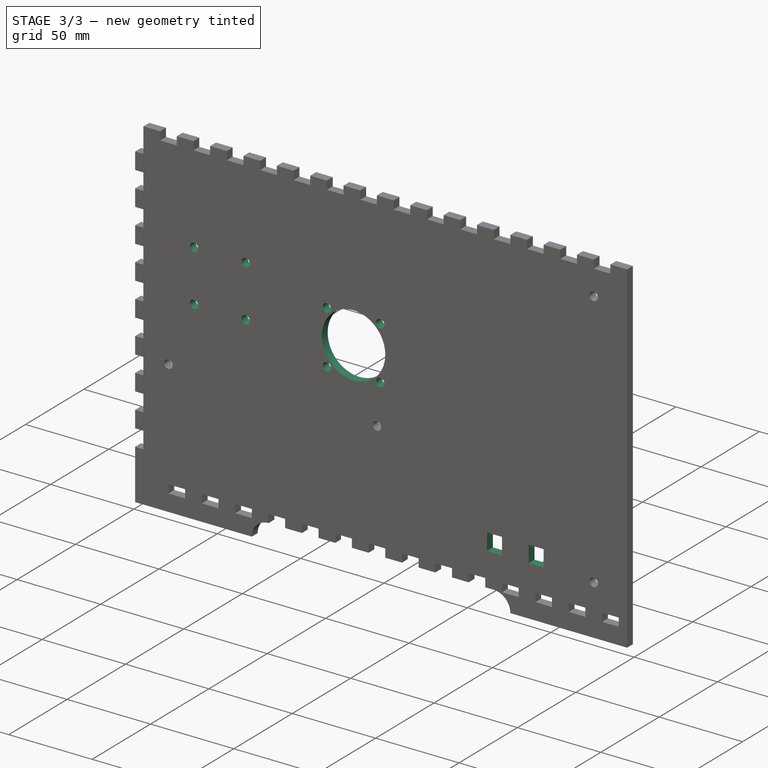
[diagram: stage 3 of 3 — iso view after this stage's code; geometry added in this stage tinted green]
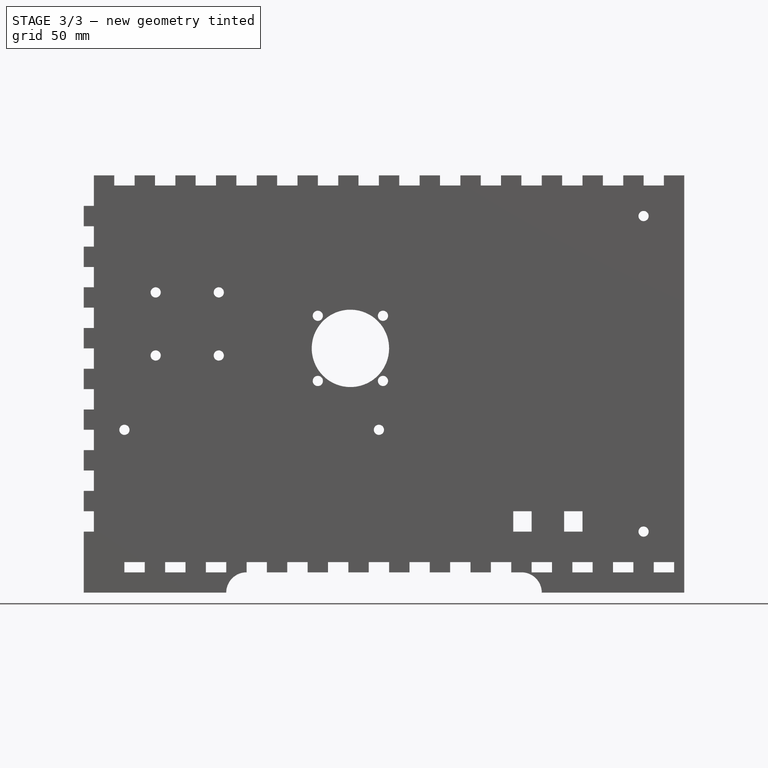
[diagram: stage 3 of 3 — front view after this stage's code; geometry added in this stage tinted green]
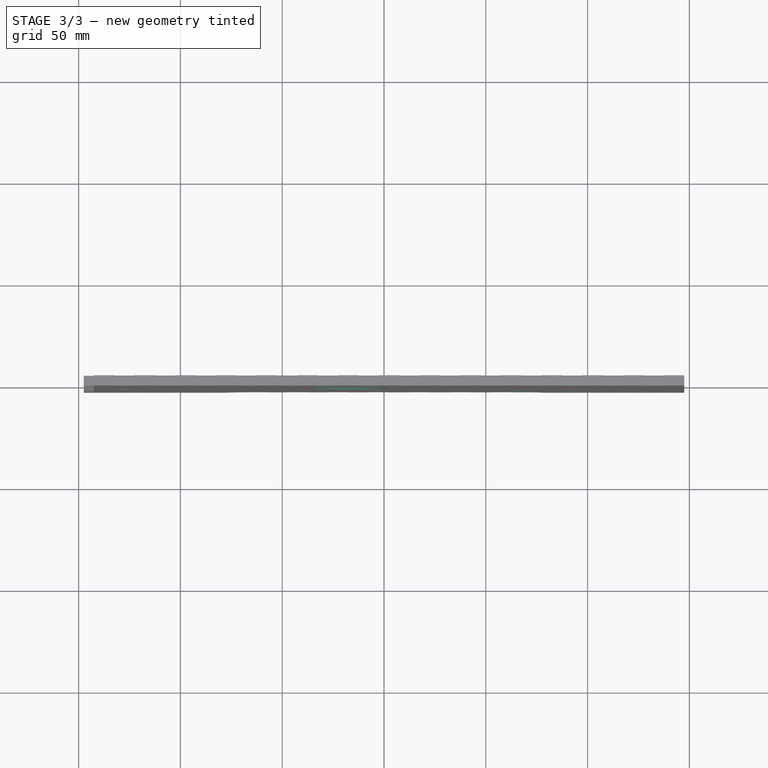
[diagram: stage 3 of 3 — top view after this stage's code; geometry added in this stage tinted green]
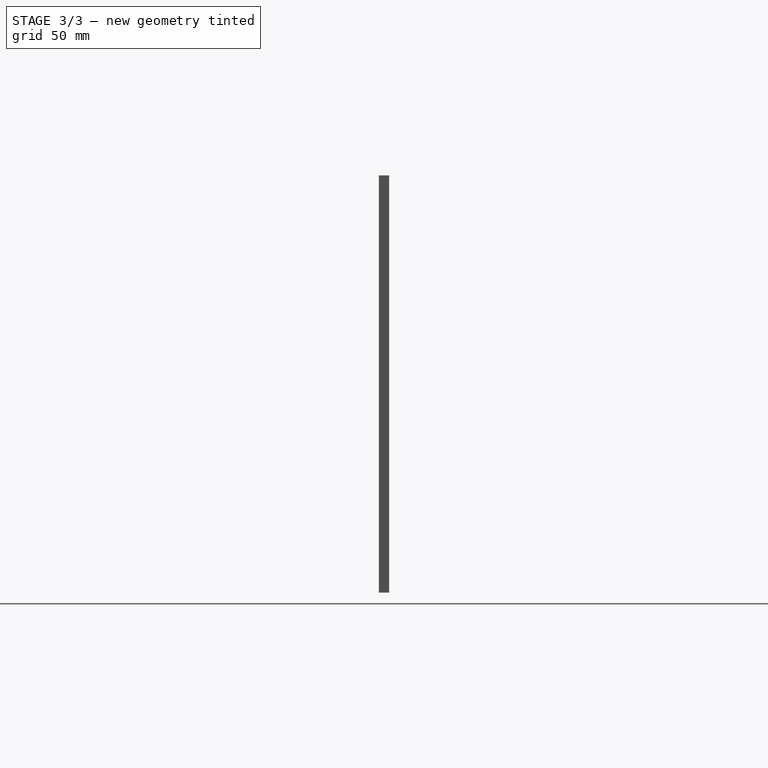
[diagram: stage 3 of 3 — right view after this stage's code; geometry added in this stage tinted green]
FEATURE [Sketcher::SketchObject] Sketch005
  ExternalGeometry = -> [Pocket002]
  FullyConstrained = false
  MapMode = 5
  Placement = pos=(0,2.5,-3.9e-15) rot=(-1,0,0;1.5708rad)
  Support = -> [Pocket002]
  sketch-geometry (7):
    g0: Circle CenterX=-16.5 CenterY=-20 CenterZ=0 NormalX=0 NormalY=0 NormalZ=1 AngleXU=0 Radius=19
    g1: Circle CenterX=-32.5 CenterY=-4 CenterZ=0 NormalX=0 NormalY=0 NormalZ=1 AngleXU=0 Radius=2.5
    g2: LineSegment StartX=-67.2638 StartY=-20 StartZ=0 EndX=18.1704 EndY=-20 EndZ=0
    g3: LineSegment StartX=-16.5 StartY=-51.6479 StartZ=0 EndX=-16.5 EndY=3.52588 EndZ=0
    g4: Circle CenterX=-0.5 CenterY=-4 CenterZ=0 NormalX=0 NormalY=0 NormalZ=1 AngleXU=0 Radius=2.5
    g5: Circle CenterX=-32.5 CenterY=-36 CenterZ=0 NormalX=0 NormalY=0 NormalZ=1 AngleXU=0 Radius=2.5
    g6: Circle CenterX=-0.5 CenterY=-36 CenterZ=0 NormalX=0 NormalY=0 NormalZ=1 AngleXU=0 Radius=2.5
  constraints (16):
    c: Diameter(g1) = 5
    c: Diameter(g0) = 38
    c: DistanceX(g1,g0) = 16
    c: DistanceY(g0,g1) = 16
    c: Horizontal(g2)
    c: PointOnObject(g0,g2)
    c: Vertical(g3)
    c: PointOnObject(g0,g3)
    c: DistanceX(g0,g-3) = 164
    c: DistanceY(g-3,g0) = 85
    c: Diameter(g4) = 5
    c: Diameter(g5) = 5
    c: Diameter(g6) = 5
    c: Symmetric(g6,g4,g2)
    c: Symmetric(g5,g6,g3)
    c: Symmetric(g1,g5,g2)
FEATURE [PartDesign::Pocket] Pocket003  label="HolesOfFan"
  BaseFeature = -> Pocket002
  Length = 5
  Length2 = 100
  Placement = pos=(0,0,0) rot=(1,0,0;1.5708rad)
  Profile = -> Sketch005
  Refine = true
  Type = 1
FEATURE [Sketcher::SketchObject] Sketch006
  ExternalGeometry = -> [Pocket003]
  FullyConstrained = false
  MapMode = 5
  Placement = pos=(0,2.5,-3.9e-15) rot=(-1,0,0;1.5708rad)
  Support = -> [Pocket003]
  sketch-geometry (9):
    g0: LineSegment StartX=72.5 StartY=70 StartZ=0 EndX=72.5 EndY=60 EndZ=0
    g1: LineSegment StartX=72.5 StartY=60 StartZ=0 EndX=63.5 EndY=60 EndZ=0
    g2: LineSegment StartX=63.5 StartY=60 StartZ=0 EndX=63.5 EndY=70 EndZ=0
    g3: LineSegment StartX=63.5 StartY=70 StartZ=0 EndX=72.5 EndY=70 EndZ=0
    g4: LineSegment StartX=80.5 StartY=65.7866 StartZ=0 EndX=80.5 EndY=36.8153 EndZ=0
    g5: LineSegment StartX=88.5 StartY=70 StartZ=0 EndX=88.5 EndY=60 EndZ=0
    g6: LineSegment StartX=88.5 StartY=60 StartZ=0 EndX=97.5 EndY=60 EndZ=0
    g7: LineSegment StartX=97.5 StartY=60 StartZ=0 EndX=97.5 EndY=70 EndZ=0
    g8: LineSegment StartX=88.5 StartY=70 StartZ=0 EndX=97.5 EndY=70 EndZ=0
  constraints (25):
    c: Vertical(g0)
    c: Coincident(g0,g1)
    c: Horizontal(g1)
    c: Coincident(g1,g2)
    c: Vertical(g2)
    c: Coincident(g2,g3)
    c: Horizontal(g3)
    c: DistanceY(g0,g0) = 10
    c: Vertical(g4)
    c: DistanceX(g0,g4) = 8
    c: Vertical(g5)
    c: Coincident(g5,g6)
    c: Horizontal(g6)
    c: Coincident(g6,g7)
    c: Vertical(g7)
    c: Equal(g7,g5)
    c: Symmetric(g5,g0,g4)
    c: DistanceY(g7,g7) = 10
    c: DistanceY(g6,g-3) = 40
    c: DistanceX(g6,g-3) = 50
    c: Coincident(g8,g5)
    c: Coincident(g3,g0)
    c: Coincident(g8,g7)
    c: DistanceX(g2,g0) = 9
    c: DistanceX(g5,g7) = 9
FEATURE [PartDesign::Pocket] Pocket004  label="HolesOfDC_Plug"
  BaseFeature = -> Pocket003
  Length = 5
  Length2 = 100
  Placement = pos=(0,0,0) rot=(1,0,0;1.5708rad)
  Profile = -> Sketch006
  Refine = true
  Type = 1
FEATURE [Sketcher::SketchObject] Sketch007
  ExternalGeometry = -> [Pocket004]
  FullyConstrained = false
  MapMode = 5
  Placement = pos=(0,2.5,-3.9e-15) rot=(-1,0,0;1.5708rad)
  Support = -> [Pocket004]
  sketch-geometry (6):
    g0: Circle CenterX=-112.15 CenterY=-16.5 CenterZ=0 NormalX=0 NormalY=0 NormalZ=1 AngleXU=0 Radius=2.5
    g1: Circle CenterX=-81.15 CenterY=-16.5 CenterZ=0 NormalX=0 NormalY=0 NormalZ=1 AngleXU=0 Radius=2.5
    g2: Circle CenterX=-112.15 CenterY=-47.5 CenterZ=0 NormalX=0 NormalY=0 NormalZ=1 AngleXU=0 Radius=2.5
    g3: Circle CenterX=-81.15 CenterY=-47.5 CenterZ=0 NormalX=0 NormalY=0 NormalZ=1 AngleXU=0 Radius=2.5
    g4: LineSegment StartX=-115.897 StartY=-32 StartZ=0 EndX=-76.1346 EndY=-32 EndZ=0
    g5: LineSegment StartX=-96.65 StartY=-4.17876 StartZ=0 EndX=-96.65 EndY=-60.0667 EndZ=0
  constraints (13):
    c: Equal(g0,g1)
    c: Equal(g1,g3)
    c: Equal(g3,g2)
    c: Diameter(g3) = 5
    c: Horizontal(g4)
    c: Vertical(g5)
    c: Symmetric(g0,g1,g5)
    c: Symmetric(g3,g1,g4)
    c: Symmetric(g3,g2,g5)
    c: Distance(g0,g1) = 31
    c: Distance(g1,g3) = 31
    c: DistanceY(g0,g-3) = 116.5
    c: DistanceX(g-3,g0) = 35.35
FEATURE [PartDesign::Pocket] Pocket005  label="HolesForMotor_Extruder"
  BaseFeature = -> Pocket004
  Length = 5
  Length2 = 100
  Placement = pos=(0,0,0) rot=(1,0,0;1.5708rad)
  Profile = -> Sketch007
  Refine = true
  Type = 1
FEATURE [PartDesign::Body] Body
  Group = -> [Sketch,Pad,Sketch001,Pocket,Sketch002,Pad001,Sketch003,Pocket001,Sketch004,Pocket002,Sketch005,Pocket003,Sketch006,Pocket004,Sketch007,Pocket005]
  Origin = -> Origin
  Tip = -> Pocket005
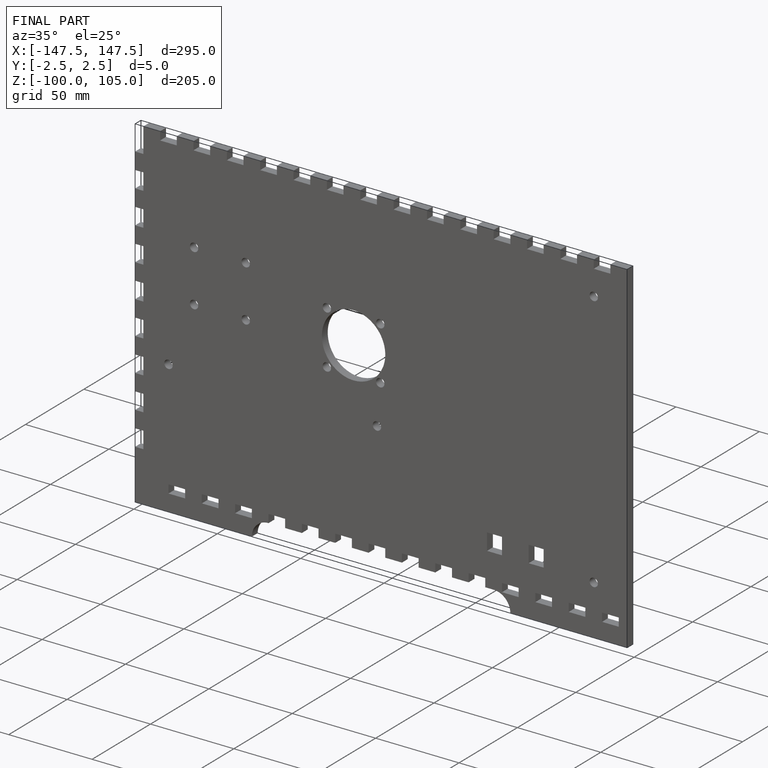
[diagram: finished part — iso view with bounding-box wireframe]
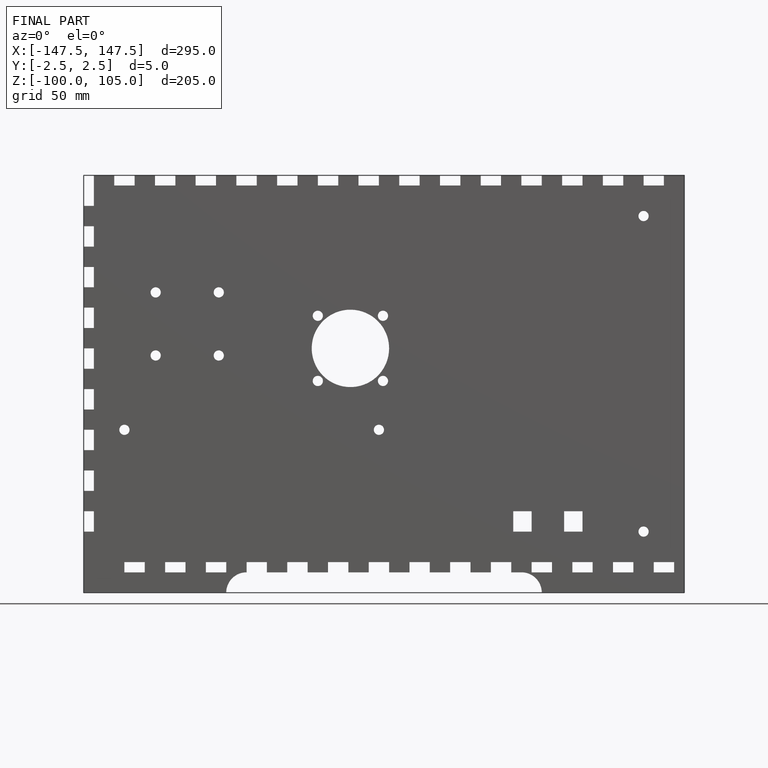
[diagram: finished part — front view with bounding-box wireframe]
